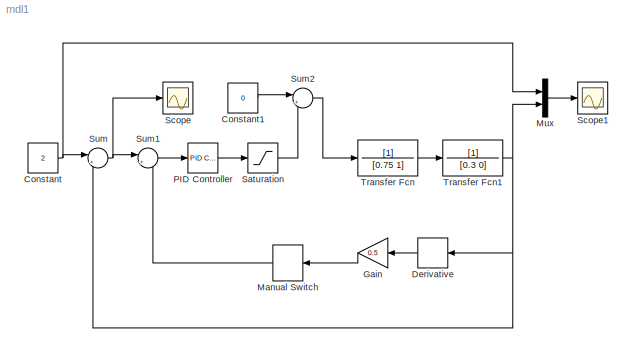
MODEL mdl1
KIND model
BLOCK [Constant] Constant
  SID = 1
  Value = 2
BLOCK [Constant] Constant1
  SID = 2
  Value = 0
BLOCK [Derivative] Derivative
  SID = 3
BLOCK [Gain] Gain
  Gain = 0.5
  SID = 4
BLOCK [ManualSwitch] Manual Switch
  SID = 5
BLOCK [Mux] Mux
  DisplayOption = bar
  Inputs = 2
  Ports = [2, 1]
  SID = 6
BLOCK [Reference] PID Controller  REF=simulink_need_slupdate/PID Controller
  D = 10
  I = 1
  P = 50
  Ports = [1, 1]
  SID = 7
  SourceBlock = simulink_need_slupdate/PID Controller
  SourceType = PID Controller
BLOCK [Saturate] Saturation
  InputPortMap = u0
  LowerLimit = -5
  Ports = [1, 1]
  SID = 8
  UpperLimit = 5
BLOCK [Scope] Scope
  DataFormat = StructureWithTime
  Floating = off
  NumInputPorts = 1
  Ports = [1]
  SID = 9
  SampleTime = 0
  ShowLegends = off
BLOCK [Scope] Scope1
  DataFormat = StructureWithTime
  Floating = off
  LimitDataPoints = off
  NumInputPorts = 1
  Ports = [1]
  SID = 10
  SampleTime = 0
  SaveName = ScopeData1
  ShowLegends = off
  TimeRange = 5
BLOCK [Sum] Sum
  IconShape = round
  InputSameDT = off
  Inputs = |+-
  OutDataTypeStr = Inherit: Inherit via internal rule
  Ports = [2, 1]
  SID = 11
BLOCK [Sum] Sum1
  IconShape = round
  InputSameDT = off
  Inputs = |+-
  OutDataTypeStr = Inherit: Inherit via internal rule
  Ports = [2, 1]
  SID = 12
BLOCK [Sum] Sum2
  IconShape = round
  InputSameDT = off
  Inputs = |++
  OutDataTypeStr = Inherit: Inherit via internal rule
  Ports = [2, 1]
  SID = 13
BLOCK [TransferFcn] Transfer Fcn
  Denominator = [0.75 1]
  SID = 14
BLOCK [TransferFcn] Transfer Fcn1
  Denominator = [0.3 0]
  SID = 15
LINE Constant1:1 -> Sum2:1
NET Constant:1 -> Mux:1, Sum:1
LINE Derivative:1 -> Gain:1
LINE Gain:1 -> Manual Switch:1
LINE Manual Switch:1 -> Sum1:2
LINE Mux:1 -> Scope1:1
LINE PID Controller:1 -> Saturation:1
LINE Saturation:1 -> Sum2:2
LINE Sum1:1 -> PID Controller:1
LINE Sum2:1 -> Transfer Fcn:1
NET Sum:1 -> Scope:1, Sum1:1
NET Transfer Fcn1:1 -> Derivative:1, Mux:2, Sum:2
LINE Transfer Fcn:1 -> Transfer Fcn1:1
note: NET lines group one-source signal fan-out (src -> all destinations, sorted); 1:1 wires keep LINE
